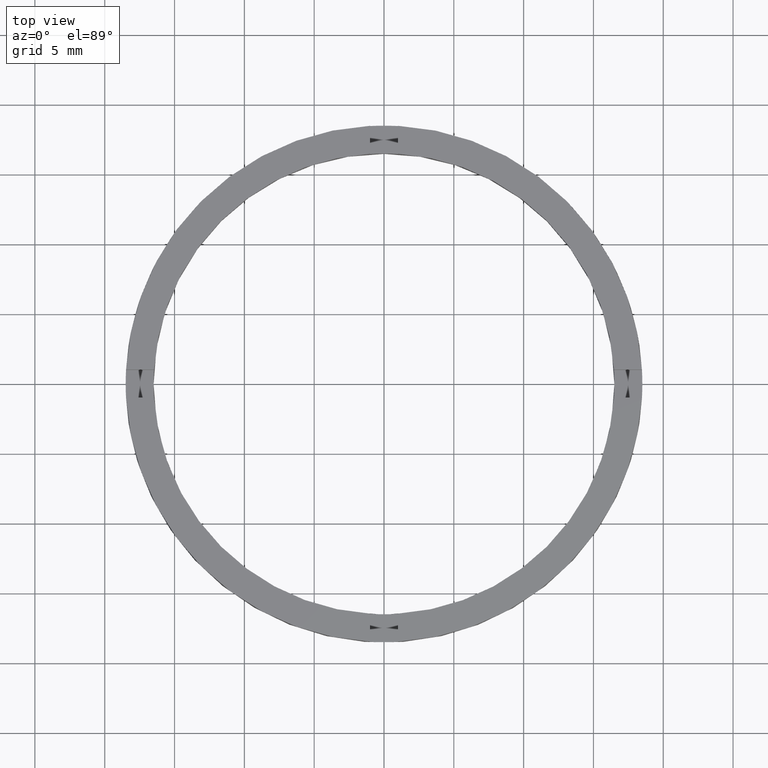
[diagram: clean part render]
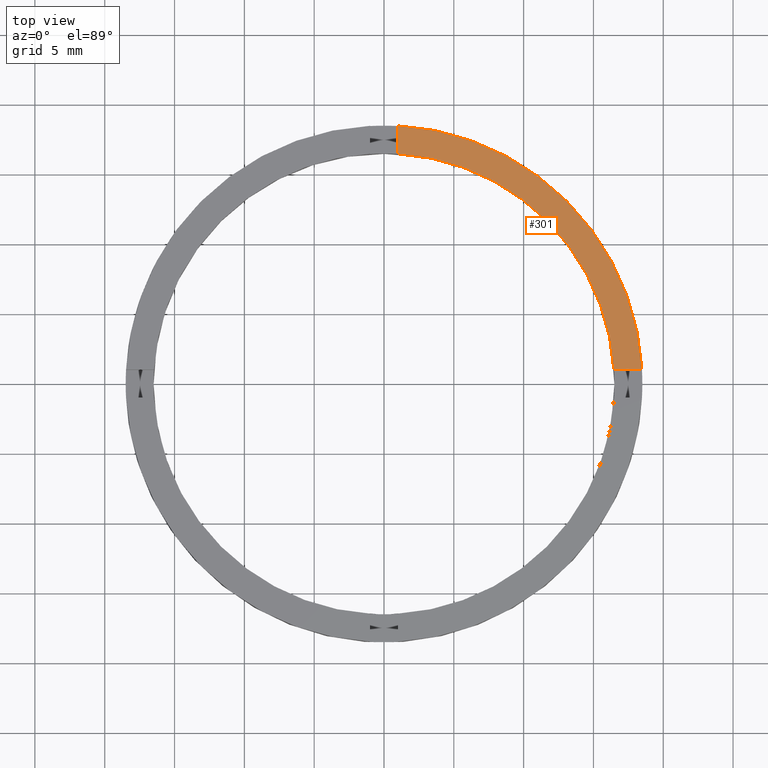
[diagram: same view with one face highlighted and labeled with its STEP entity id]
A machine part, top view. The second image highlights one B-rep face of the part: STEP entity #301.
In plain terms, the highlighted planar face has unit normal (0, 0, 1).
Its self-contained STEP definition (entity closure, byte-faithful):
#2 = EDGE_CURVE ( 'NONE', #98, #100, #432, .T. ) ;
#25 = DIRECTION ( 'NONE',  ( 0.000000000000000000, 0.000000000000000000, 1.000000000000000000 ) ) ;
#28 = PLANE ( 'NONE',  #249 ) ;
#31 = DIRECTION ( 'NONE',  ( 1.000000000000000000, 0.000000000000000000, 0.000000000000000000 ) ) ;
#34 = CARTESIAN_POINT ( 'NONE',  ( 8.499999999999992895, 0.9999999999998419042, 2.500000000000000000 ) ) ;
#45 = CARTESIAN_POINT ( 'NONE',  ( 0.9999999999999733546, 18.47295320191116375, 2.500000000000000000 ) ) ;
#49 = DIRECTION ( 'NONE',  ( 0.000000000000000000, 0.000000000000000000, 1.000000000000000000 ) ) ;
#62 = ORIENTED_EDGE ( 'NONE', *, *, #289, .F. ) ;
#72 = DIRECTION ( 'NONE',  ( -1.000000000000000000, -8.673617379884034239E-17, -0.000000000000000000 ) ) ;
#98 = VERTEX_POINT ( 'NONE', #429 ) ;
#100 = VERTEX_POINT ( 'NONE', #236 ) ;
#102 = LINE ( 'NONE', #250, #670 ) ;
#132 = CIRCLE ( 'NONE', #533, 16.50000000000000000 ) ;
#146 = VECTOR ( 'NONE', #72, 1000.000000000000000 ) ;
#214 = CARTESIAN_POINT ( 'NONE',  ( 0.9999999999999733546, 16.46966909200060414, 2.500000000000000000 ) ) ;
#229 = DIRECTION ( 'NONE',  ( 0.000000000000000000, 0.000000000000000000, 1.000000000000000000 ) ) ;
#236 = CARTESIAN_POINT ( 'NONE',  ( 16.46966909200061480, 0.9999999999998427924, 2.500000000000000000 ) ) ;
#249 = AXIS2_PLACEMENT_3D ( 'NONE', #770, #25, #775 ) ;
#250 = CARTESIAN_POINT ( 'NONE',  ( 0.9999999999999733546, 8.499999999999998224, 2.500000000000000000 ) ) ;
#267 = EDGE_CURVE ( 'NONE', #100, #609, #132, .T. ) ;
#289 = EDGE_CURVE ( 'NONE', #609, #621, #102, .T. ) ;
#301 = ADVANCED_FACE ( 'NONE', ( #379 ), #28, .T. ) ;
#319 = ORIENTED_EDGE ( 'NONE', *, *, #267, .F. ) ;
#379 = FACE_OUTER_BOUND ( 'NONE', #614, .T. ) ;
#380 = CIRCLE ( 'NONE', #767, 18.50000000000000000 ) ;
#429 = CARTESIAN_POINT ( 'NONE',  ( 18.47295320191117085, 0.9999999999998427924, 2.500000000000000000 ) ) ;
#432 = LINE ( 'NONE', #34, #146 ) ;
#511 = CARTESIAN_POINT ( 'NONE',  ( 0.000000000000000000, 0.000000000000000000, 2.500000000000000000 ) ) ;
#518 = EDGE_CURVE ( 'NONE', #98, #621, #380, .T. ) ;
#533 = AXIS2_PLACEMENT_3D ( 'NONE', #511, #49, #590 ) ;
#553 = CARTESIAN_POINT ( 'NONE',  ( 0.000000000000000000, 0.000000000000000000, 2.500000000000000000 ) ) ;
#590 = DIRECTION ( 'NONE',  ( 1.000000000000000000, 0.000000000000000000, 0.000000000000000000 ) ) ;
#606 = ORIENTED_EDGE ( 'NONE', *, *, #2, .F. ) ;
#609 = VERTEX_POINT ( 'NONE', #214 ) ;
#614 = EDGE_LOOP ( 'NONE', ( #62, #319, #606, #622 ) ) ;
#621 = VERTEX_POINT ( 'NONE', #45 ) ;
#622 = ORIENTED_EDGE ( 'NONE', *, *, #518, .T. ) ;
#670 = VECTOR ( 'NONE', #761, 1000.000000000000000 ) ;
#761 = DIRECTION ( 'NONE',  ( 0.000000000000000000, 1.000000000000000000, 0.000000000000000000 ) ) ;
#767 = AXIS2_PLACEMENT_3D ( 'NONE', #553, #229, #31 ) ;
#770 = CARTESIAN_POINT ( 'NONE',  ( 0.000000000000000000, 0.000000000000000000, 2.500000000000000000 ) ) ;
#775 = DIRECTION ( 'NONE',  ( 1.000000000000000000, 0.000000000000000000, -0.000000000000000000 ) ) ;